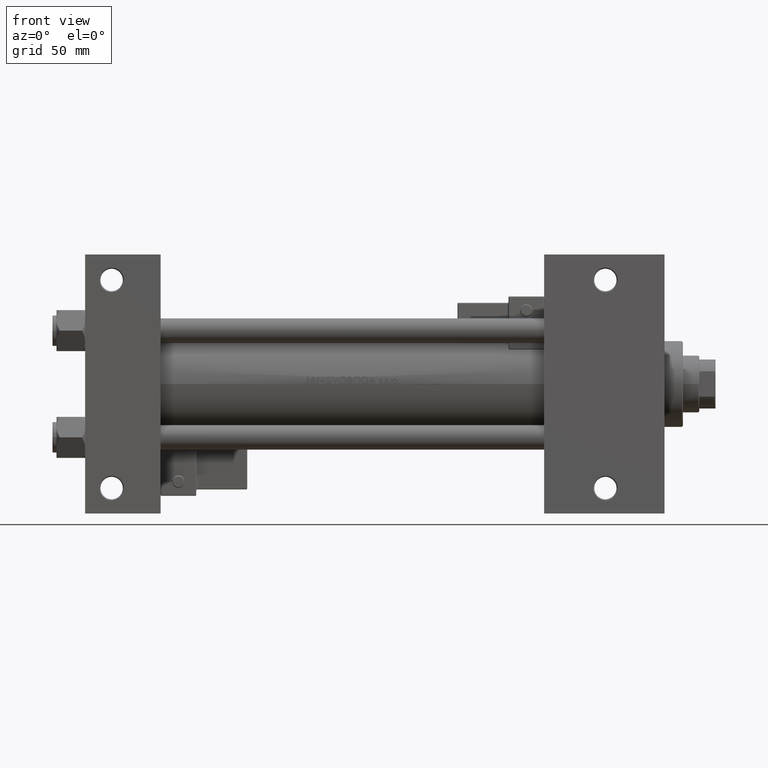
[diagram: clean part render]
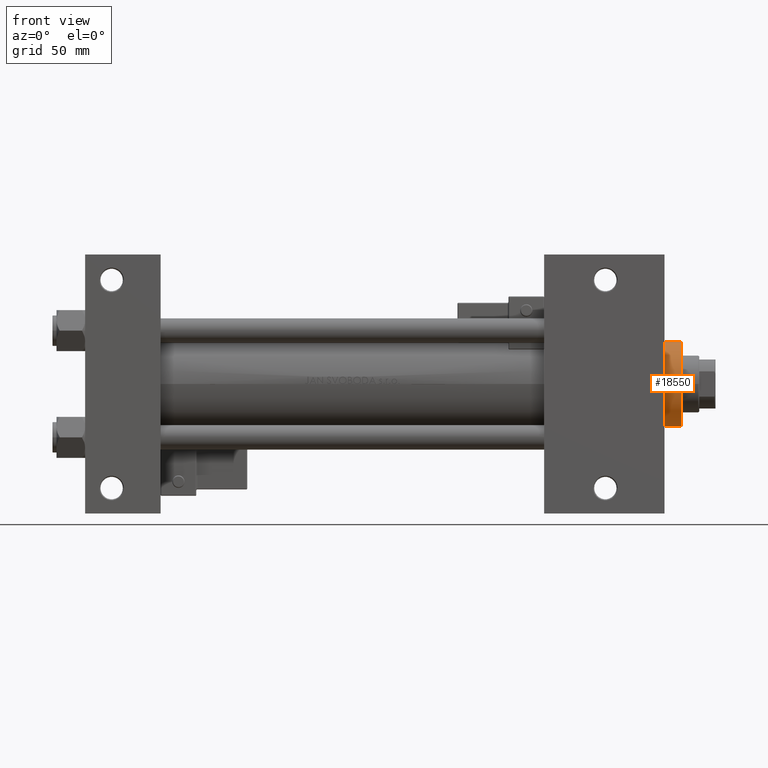
[diagram: same view with one face highlighted and labeled with its STEP entity id]
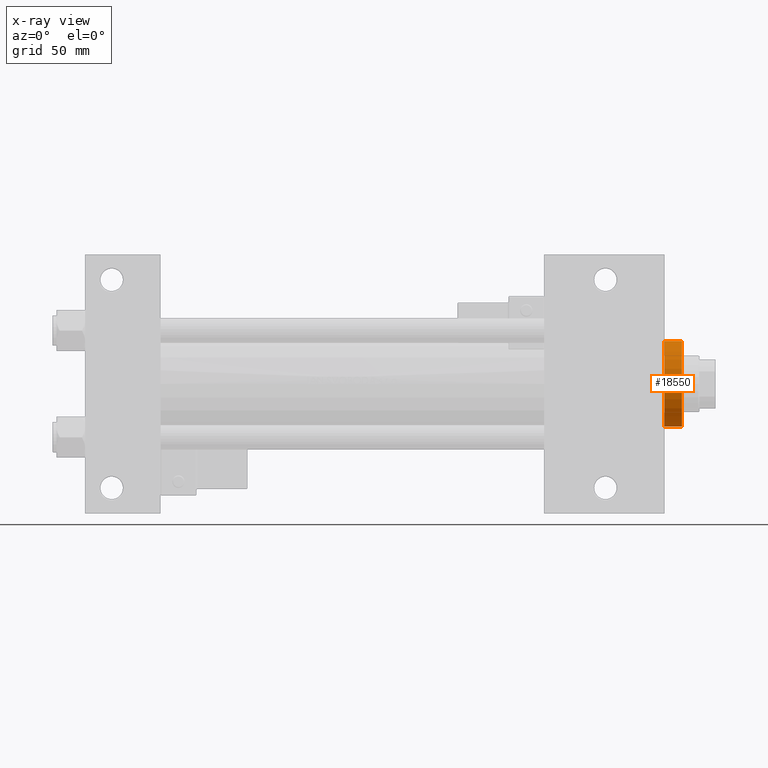
[diagram: x-ray of the same camera — body ghosted, the highlighted face saturated]
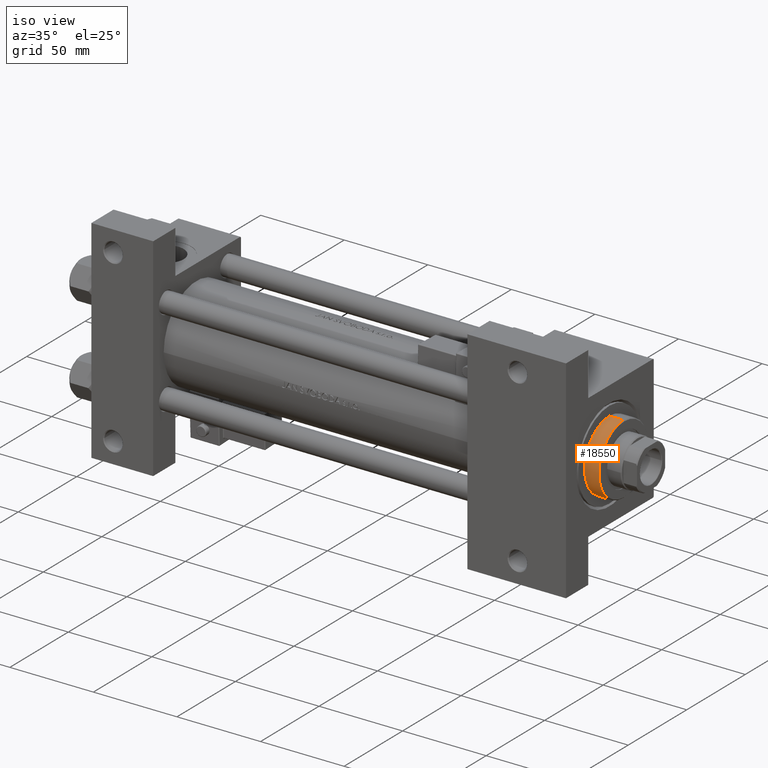
[diagram: same view with one face highlighted and labeled with its STEP entity id]
A machine part, front view. The second image highlights one B-rep face of the part: STEP entity #18550.
The next image is the same camera in x-ray: the body ghosted, the highlighted face saturated — about 0% of this face is hidden behind the body in this view.
A second angle (iso view) of the same face is appended — the face is thin or edge-on in the first view.
In plain terms, the highlighted cylindrical surface (partial cylindrical patch) has radius 21 mm, axis along (-1, -0, 0).
Its self-contained STEP definition (entity closure, byte-faithful):
#775 = VECTOR ( 'NONE', #21155, 1000.000000000000000 ) ;
#2141 = AXIS2_PLACEMENT_3D ( 'NONE', #30005, #37300, #34176 ) ;
#3392 = EDGE_CURVE ( 'NONE', #3524, #6937, #48944, .T. ) ;
#3524 = VERTEX_POINT ( 'NONE', #49595 ) ;
#6589 = LINE ( 'NONE', #35254, #31845 ) ;
#6789 = DIRECTION ( 'NONE',  ( 1.000000000000000000, 0.000000000000000000, 0.000000000000000000 ) ) ;
#6937 = VERTEX_POINT ( 'NONE', #43045 ) ;
#7806 = EDGE_CURVE ( 'NONE', #47529, #3524, #6589, .T. ) ;
#8498 = CIRCLE ( 'NONE', #41813, 21.00000000000000000 ) ;
#11814 = DIRECTION ( 'NONE',  ( 1.000000000000000000, 0.000000000000000000, 0.000000000000000000 ) ) ;
#16471 = AXIS2_PLACEMENT_3D ( 'NONE', #38695, #18901, #11814 ) ;
#18281 = CARTESIAN_POINT ( 'NONE',  ( 0.000000000000000000, 0.000000000000000000, 37.19999999999999574 ) ) ;
#18550 = ADVANCED_FACE ( 'NONE', ( #21425 ), #21933, .T. ) ;
#18901 = DIRECTION ( 'NONE',  ( 0.000000000000000000, 0.000000000000000000, 1.000000000000000000 ) ) ;
#19098 = CARTESIAN_POINT ( 'NONE',  ( -21.00000000000000000, 0.000000000000000000, 37.19999999999999574 ) ) ;
#21155 = DIRECTION ( 'NONE',  ( -0.000000000000000000, -0.000000000000000000, -1.000000000000000000 ) ) ;
#21425 = FACE_OUTER_BOUND ( 'NONE', #27424, .T. ) ;
#21638 = ORIENTED_EDGE ( 'NONE', *, *, #44102, .T. ) ;
#21933 = CYLINDRICAL_SURFACE ( 'NONE', #2141, 21.00000000000000000 ) ;
#22850 = ORIENTED_EDGE ( 'NONE', *, *, #7806, .T. ) ;
#23616 = ORIENTED_EDGE ( 'NONE', *, *, #33780, .F. ) ;
#26612 = DIRECTION ( 'NONE',  ( 0.000000000000000000, 0.000000000000000000, -1.000000000000000000 ) ) ;
#27424 = EDGE_LOOP ( 'NONE', ( #23616, #21638, #22850, #32438 ) ) ;
#28952 = LINE ( 'NONE', #32872, #775 ) ;
#30005 = CARTESIAN_POINT ( 'NONE',  ( 0.000000000000000000, 0.000000000000000000, 37.69999999999999574 ) ) ;
#31845 = VECTOR ( 'NONE', #38386, 1000.000000000000000 ) ;
#32438 = ORIENTED_EDGE ( 'NONE', *, *, #3392, .T. ) ;
#32872 = CARTESIAN_POINT ( 'NONE',  ( 21.00000000000000000, 2.571758278209441661E-15, 37.69999999999999574 ) ) ;
#33780 = EDGE_CURVE ( 'NONE', #35430, #6937, #28952, .T. ) ;
#34176 = DIRECTION ( 'NONE',  ( -1.000000000000000000, 0.000000000000000000, 0.000000000000000000 ) ) ;
#35254 = CARTESIAN_POINT ( 'NONE',  ( -21.00000000000000000, 0.000000000000000000, 37.69999999999999574 ) ) ;
#35430 = VERTEX_POINT ( 'NONE', #36036 ) ;
#36036 = CARTESIAN_POINT ( 'NONE',  ( 21.00000000000000000, 2.571758278209441661E-15, 37.19999999999999574 ) ) ;
#37300 = DIRECTION ( 'NONE',  ( -0.000000000000000000, -0.000000000000000000, -1.000000000000000000 ) ) ;
#38386 = DIRECTION ( 'NONE',  ( -0.000000000000000000, -0.000000000000000000, -1.000000000000000000 ) ) ;
#38695 = CARTESIAN_POINT ( 'NONE',  ( 0.000000000000000000, 0.000000000000000000, 28.69999999999999929 ) ) ;
#41813 = AXIS2_PLACEMENT_3D ( 'NONE', #18281, #26612, #6789 ) ;
#43045 = CARTESIAN_POINT ( 'NONE',  ( 21.00000000000000000, 2.571758278209441661E-15, 28.69999999999999929 ) ) ;
#44102 = EDGE_CURVE ( 'NONE', #35430, #47529, #8498, .T. ) ;
#47529 = VERTEX_POINT ( 'NONE', #19098 ) ;
#48944 = CIRCLE ( 'NONE', #16471, 21.00000000000000000 ) ;
#49595 = CARTESIAN_POINT ( 'NONE',  ( -21.00000000000000000, 0.000000000000000000, 28.69999999999999929 ) ) ;